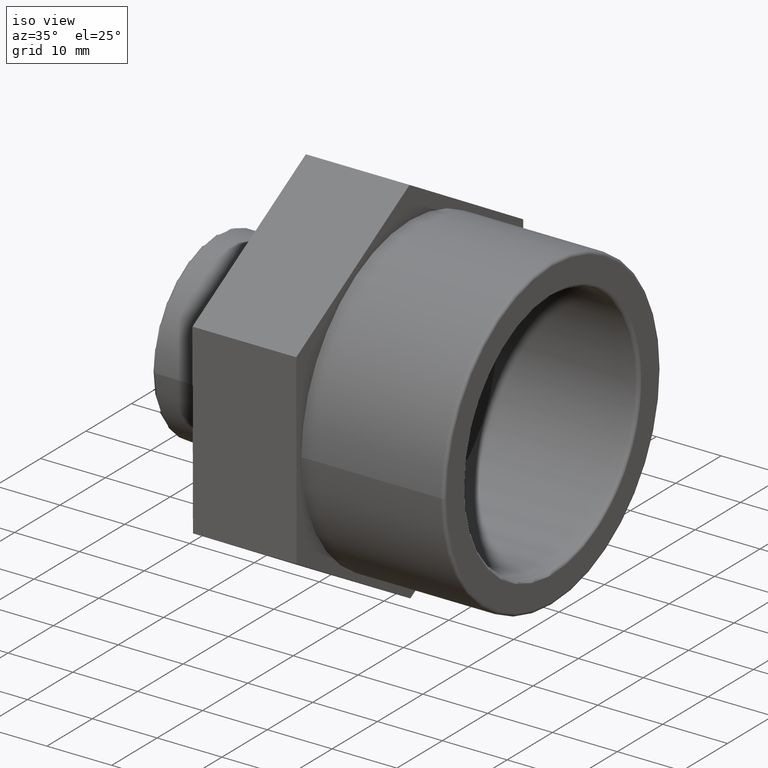
[diagram: clean part render]
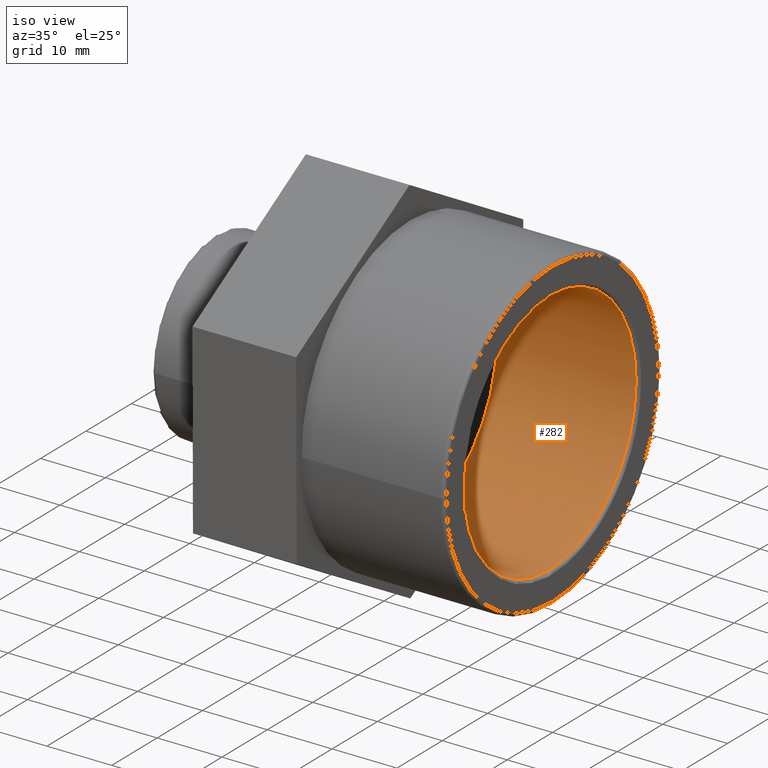
[diagram: same view with one face highlighted and labeled with its STEP entity id]
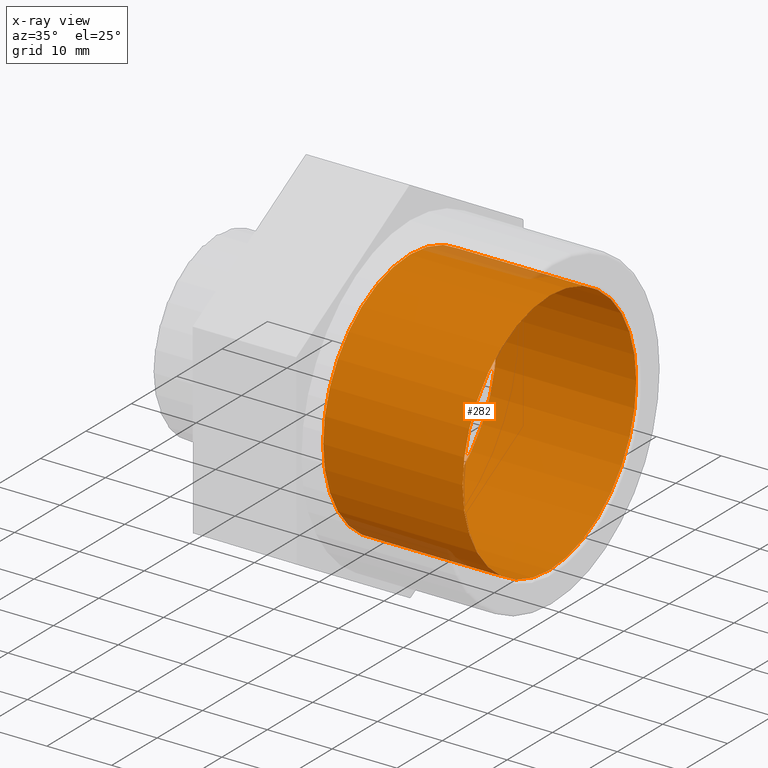
[diagram: x-ray of the same camera — body ghosted, the highlighted face saturated]
A machine part, iso view. The second image highlights one B-rep face of the part: STEP entity #282.
The next image is the same camera in x-ray: the body ghosted, the highlighted face saturated — about 3% of this face is hidden behind the body in this view.
In plain terms, the highlighted cylindrical surface (bore or boss wall) has radius 19.1212 mm, axis along (-1, -0, 0).
Its self-contained STEP definition (entity closure, byte-faithful):
#51=CYLINDRICAL_SURFACE('',#308,19.1212);
#70=FACE_BOUND('',#109,.T.);
#85=FACE_OUTER_BOUND('',#108,.T.);
#108=EDGE_LOOP('',(#216));
#109=EDGE_LOOP('',(#217));
#140=CIRCLE('',#304,19.1212);
#143=CIRCLE('',#309,19.1212);
#154=VERTEX_POINT('',#430);
#157=VERTEX_POINT('',#438);
#180=EDGE_CURVE('',#154,#154,#140,.T.);
#183=EDGE_CURVE('',#157,#157,#143,.T.);
#216=ORIENTED_EDGE('',*,*,#183,.T.);
#217=ORIENTED_EDGE('',*,*,#180,.F.);
#282=ADVANCED_FACE('',(#85,#70),#51,.F.);
#304=AXIS2_PLACEMENT_3D('',#431,#342,#343);
#308=AXIS2_PLACEMENT_3D('',#437,#350,#351);
#309=AXIS2_PLACEMENT_3D('',#439,#352,#353);
#342=DIRECTION('center_axis',(-1.,-1.83697019872103E-16,0.));
#343=DIRECTION('ref_axis',(-1.85073943632862E-16,1.,6.12323399573677E-17));
#350=DIRECTION('center_axis',(-1.,-1.83697019872103E-16,0.));
#351=DIRECTION('ref_axis',(2.38360372416973E-16,-1.,0.));
#352=DIRECTION('center_axis',(-1.,-1.83697019872103E-16,0.));
#353=DIRECTION('ref_axis',(0.,0.,1.));
#430=CARTESIAN_POINT('',(25.52197,-19.1212,1.17083581879282E-15));
#431=CARTESIAN_POINT('Origin',(25.52197,9.46443234693989E-15,0.));
#437=CARTESIAN_POINT('Origin',(15.,7.53157781475622E-15,0.));
#438=CARTESIAN_POINT('',(4.00000000000001,-19.1212,0.));
#439=CARTESIAN_POINT('Origin',(4.,5.51091059616309E-15,0.));